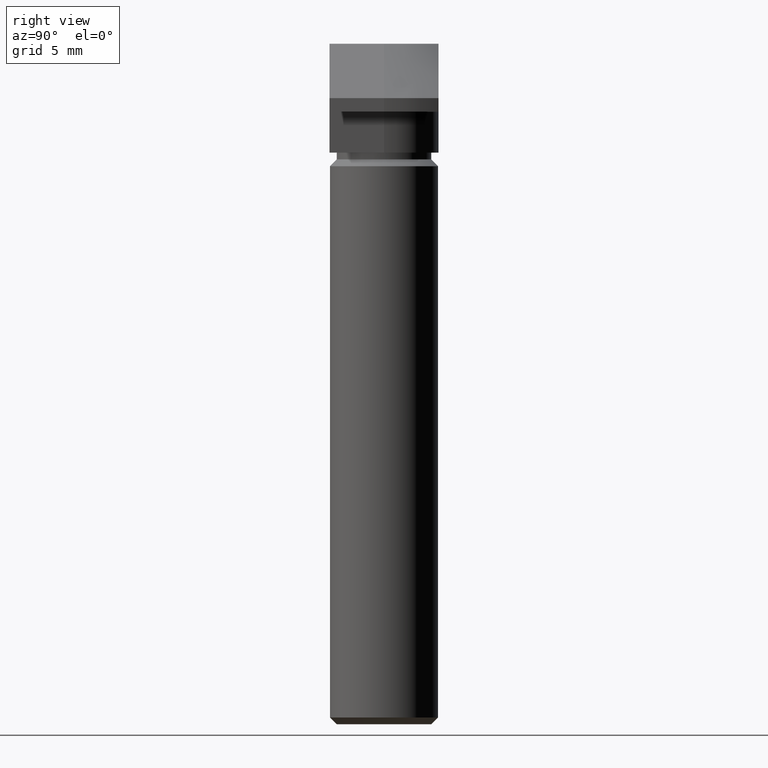
[diagram: clean part render]
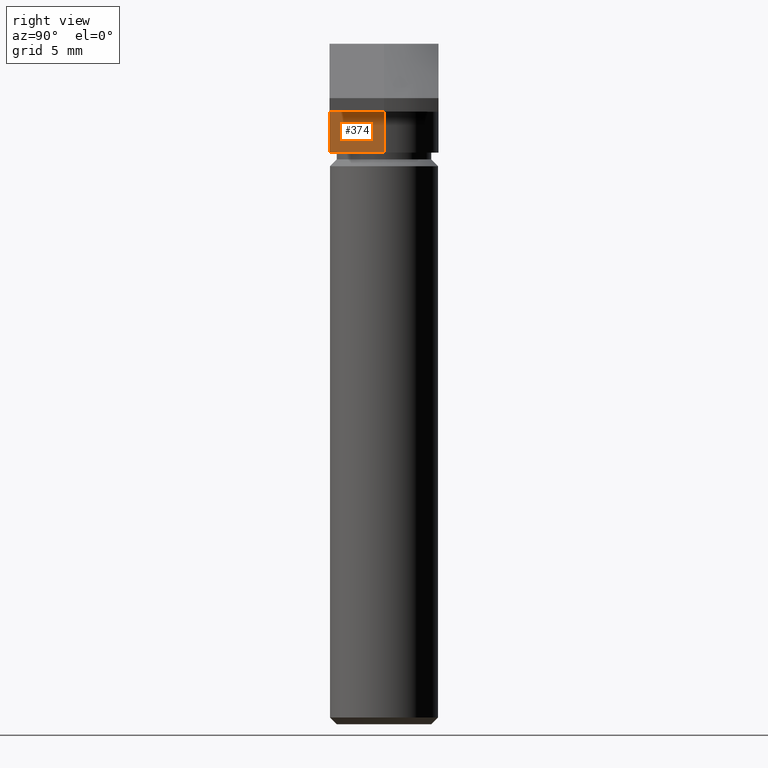
[diagram: same view with one face highlighted and labeled with its STEP entity id]
A machine part, right view. The second image highlights one B-rep face of the part: STEP entity #374.
In plain terms, the highlighted planar face has unit normal (1, 0, 0).
Its self-contained STEP definition (entity closure, byte-faithful):
#22=LINE('',#576,#56);
#23=LINE('',#578,#57);
#24=LINE('',#580,#58);
#25=LINE('',#581,#59);
#56=VECTOR('',#467,3.99999999999999);
#57=VECTOR('',#468,3.);
#58=VECTOR('',#469,3.99999999999999);
#59=VECTOR('',#470,3.);
#87=PLANE('',#406);
#116=FACE_OUTER_BOUND('',#143,.T.);
#143=EDGE_LOOP('',(#278,#279,#280,#281));
#186=VERTEX_POINT('',#574);
#187=VERTEX_POINT('',#575);
#188=VERTEX_POINT('',#577);
#189=VERTEX_POINT('',#579);
#222=EDGE_CURVE('',#186,#187,#22,.T.);
#223=EDGE_CURVE('',#186,#188,#23,.T.);
#224=EDGE_CURVE('',#189,#188,#24,.T.);
#225=EDGE_CURVE('',#187,#189,#25,.T.);
#278=ORIENTED_EDGE('',*,*,#222,.F.);
#279=ORIENTED_EDGE('',*,*,#223,.T.);
#280=ORIENTED_EDGE('',*,*,#224,.F.);
#281=ORIENTED_EDGE('',*,*,#225,.F.);
#374=ADVANCED_FACE('',(#116),#87,.T.);
#406=AXIS2_PLACEMENT_3D('',#573,#465,#466);
#465=DIRECTION('center_axis',(1.,0.,0.));
#466=DIRECTION('ref_axis',(0.,-1.,0.));
#467=DIRECTION('',(0.,1.,0.));
#468=DIRECTION('',(0.,0.,-1.));
#469=DIRECTION('',(0.,-1.,0.));
#470=DIRECTION('',(0.,0.,-1.));
#573=CARTESIAN_POINT('Origin',(3.99999999999999,-1.49880108324396E-14,-5.));
#574=CARTESIAN_POINT('',(3.99999999999999,-4.00000000000001,-5.));
#575=CARTESIAN_POINT('',(3.99999999999999,-1.49880108324396E-14,-5.));
#576=CARTESIAN_POINT('',(3.99999999999999,-7.49400541621981E-15,-5.));
#577=CARTESIAN_POINT('',(3.99999999999999,-4.00000000000001,-8.));
#578=CARTESIAN_POINT('',(3.99999999999999,-4.00000000000001,-5.));
#579=CARTESIAN_POINT('',(3.99999999999999,-1.49880108324396E-14,-8.));
#580=CARTESIAN_POINT('',(3.99999999999999,-4.00000000000001,-8.));
#581=CARTESIAN_POINT('',(3.99999999999999,-1.49880108324396E-14,-5.));